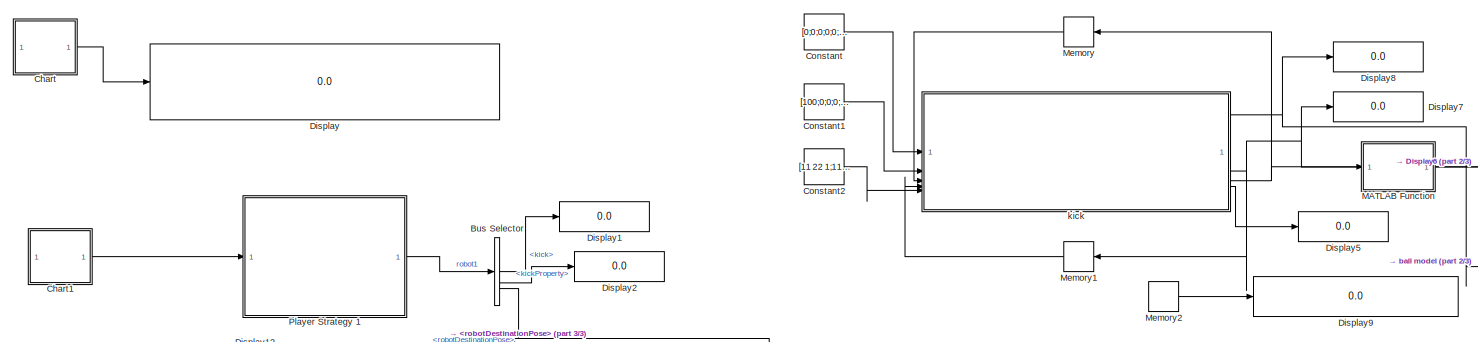
[diagram: root canvas - part 1/3, top center region]
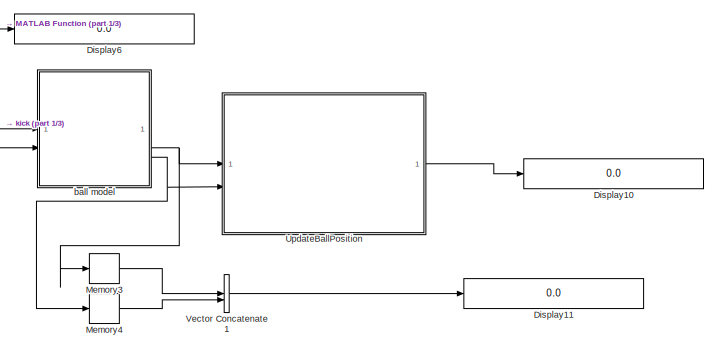
[diagram: root canvas - part 2/3, middle right region]
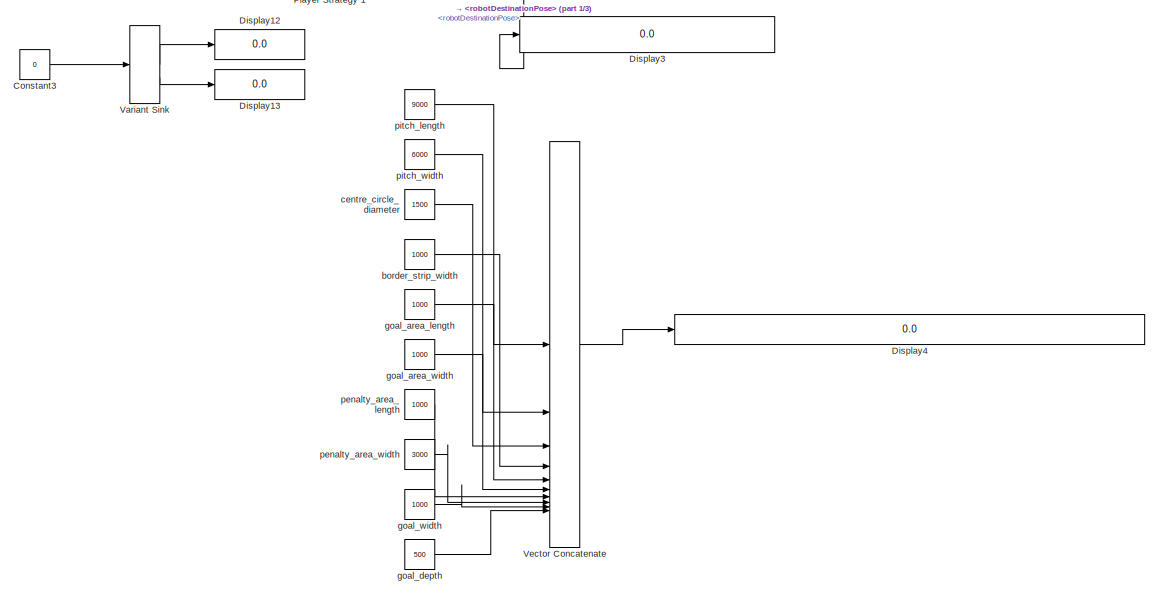
[diagram: root canvas - part 3/3, bottom left region]
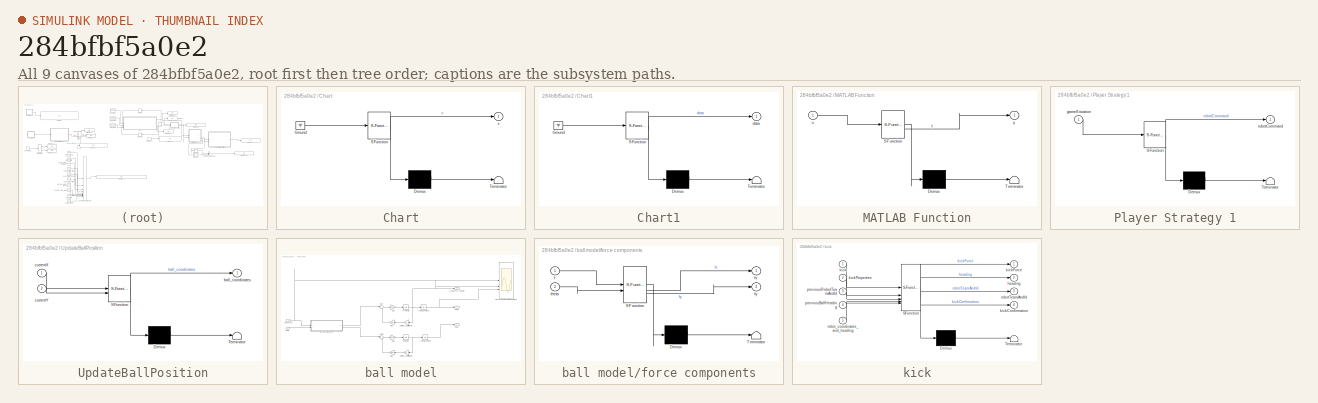
[diagram: thumbnail index - all 9 canvases of the model, root first then tree order]
MODEL slx_284bfbf5a0e2
KIND model
CONFIG AbsTol = auto
CONFIG EnableMultiTasking = off
CONFIG FixedStep = auto
CONFIG MaxStep = auto
CONFIG MinStep = auto
CONFIG RelTol = 1e-3
CONFIG SampleTimeConstraint = Unconstrained
CONFIG SolverName = VariableStepAuto
CONFIG StartTime = 0.0
CONFIG StopTime = 10.0
BLOCK [BusSelector] Bus Selector
  OutputSignals = kick,kickProperty,robotDestinationPose
BLOCK [SubSystem] Chart
  ErrorFcn = Stateflow.Translate.translate
  PermitHierarchicalResolution = ExplicitOnly
  SFBlockType = Chart
  TreatAsAtomicUnit = on
BLOCK [Demux] Chart/ Demux 
  Outputs = 1
BLOCK [Ground] Chart/ Ground 
BLOCK [S-Function] Chart/ SFunction 
  EnableBusSupport = on
  FunctionName = sf_sfun
  PortCounts = [1 2]
  SFcnIsStateOwnerBlock = off
  SFunctionDeploymentMode = off
  Tag = Stateflow S-Function 3
BLOCK [Terminator] Chart/ Terminator 
BLOCK [Outport] Chart/x
BLOCK [SubSystem] Chart1
  ErrorFcn = Stateflow.Translate.translate
  PermitHierarchicalResolution = ExplicitOnly
  SFBlockType = Chart
  TreatAsAtomicUnit = on
BLOCK [Demux] Chart1/ Demux 
  Outputs = 1
BLOCK [Ground] Chart1/ Ground 
BLOCK [S-Function] Chart1/ SFunction 
  EnableBusSupport = on
  FunctionName = sf_sfun
  PortCounts = [1 2]
  SFcnIsStateOwnerBlock = off
  SFunctionDeploymentMode = off
  Tag = Stateflow S-Function 1
BLOCK [Terminator] Chart1/ Terminator 
BLOCK [Outport] Chart1/data
BLOCK [Constant] Constant
  Value = [0;0;0;0;0;0;0;0]
BLOCK [Constant] Constant1
  Value = [100;0;0;0;0;0;0;0]
BLOCK [Constant] Constant2
  Value = [11 22 1;11 33 2;11 44 3;11 55 4;11 66 5;11 77 6;11 88 7;11 99 8]
BLOCK [Constant] Constant3
  Value = 0
BLOCK [Display] Display
  Decimation = 1
BLOCK [Display] Display1
  Decimation = 1
BLOCK [Display] Display10
  Decimation = 1
BLOCK [Display] Display11
  Decimation = 1
BLOCK [Display] Display12
  Decimation = 1
BLOCK [Display] Display13
  Decimation = 1
BLOCK [Display] Display2
  Decimation = 1
BLOCK [Display] Display3
  Decimation = 1
BLOCK [Display] Display4
  Decimation = 1
BLOCK [Display] Display5
  Decimation = 1
BLOCK [Display] Display6
  Decimation = 1
BLOCK [Display] Display7
  Decimation = 1
BLOCK [Display] Display8
  Decimation = 1
BLOCK [Display] Display9
  Decimation = 1
BLOCK [SubSystem] MATLAB Function
  ErrorFcn = Stateflow.Translate.translate
  LibrarySourceBlock = simulink/User-Defined\nFunctions/MATLAB Function
  PermitHierarchicalResolution = ExplicitOnly
  SFBlockType = MATLAB Function
  TreatAsAtomicUnit = on
BLOCK [Demux] MATLAB Function/ Demux 
  Outputs = 1
BLOCK [S-Function] MATLAB Function/ SFunction 
  EnableBusSupport = on
  FunctionName = sf_sfun
  PortCounts = [1 2]
  SFcnIsStateOwnerBlock = off
  SFunctionDeploymentMode = off
  Tag = Stateflow S-Function 2
BLOCK [Terminator] MATLAB Function/ Terminator 
BLOCK [Inport] MATLAB Function/u
BLOCK [Outport] MATLAB Function/y
BLOCK [Memory] Memory
  InheritSampleTime = on
  InitialCondition = 1
  LinearizeAsDelay = on
  NameLocation = top
BLOCK [Memory] Memory1
  InheritSampleTime = on
  LinearizeAsDelay = on
  NameLocation = top
BLOCK [Memory] Memory2
  InheritSampleTime = on
  InitialCondition = [1 1]
  LinearizeAsDelay = on
BLOCK [Memory] Memory3
BLOCK [Memory] Memory4
BLOCK [SubSystem] Player Strategy 1
  ErrorFcn = Stateflow.Translate.translate
  PermitHierarchicalResolution = ExplicitOnly
  SFBlockType = Chart
  TreatAsAtomicUnit = on
BLOCK [Demux] Player Strategy 1/ Demux 
  Outputs = 1
BLOCK [S-Function] Player Strategy 1/ SFunction 
  EnableBusSupport = on
  FunctionName = sf_sfun
  PortCounts = [1 2]
  SFcnIsStateOwnerBlock = off
  SFunctionDeploymentMode = off
  Tag = Stateflow S-Function 4
BLOCK [Terminator] Player Strategy 1/ Terminator 
BLOCK [Inport] Player Strategy 1/gameSituation
BLOCK [Outport] Player Strategy 1/robotCommand
BLOCK [SubSystem] UpdateBallPosition
  ErrorFcn = Stateflow.Translate.translate
  LibrarySourceBlock = simulink/User-Defined\nFunctions/MATLAB Function
  PermitHierarchicalResolution = ExplicitOnly
  SFBlockType = MATLAB Function
  TreatAsAtomicUnit = on
BLOCK [Demux] UpdateBallPosition/ Demux 
  Outputs = 1
BLOCK [S-Function] UpdateBallPosition/ SFunction 
  EnableBusSupport = on
  FunctionName = sf_sfun
  PortCounts = [2 2]
  SFcnIsStateOwnerBlock = off
  SFunctionDeploymentMode = off
  Tag = Stateflow S-Function 18
BLOCK [Terminator] UpdateBallPosition/ Terminator 
BLOCK [Outport] UpdateBallPosition/ball_coordinates
BLOCK [Inport] UpdateBallPosition/currentX
BLOCK [Inport] UpdateBallPosition/currentY
  Port = 2
BLOCK [VariantSink] Variant Sink
BLOCK [Concatenate] Vector Concatenate
  Mode = Multidimensional array
  NumInputs = 10
BLOCK [Concatenate] Vector Concatenate1
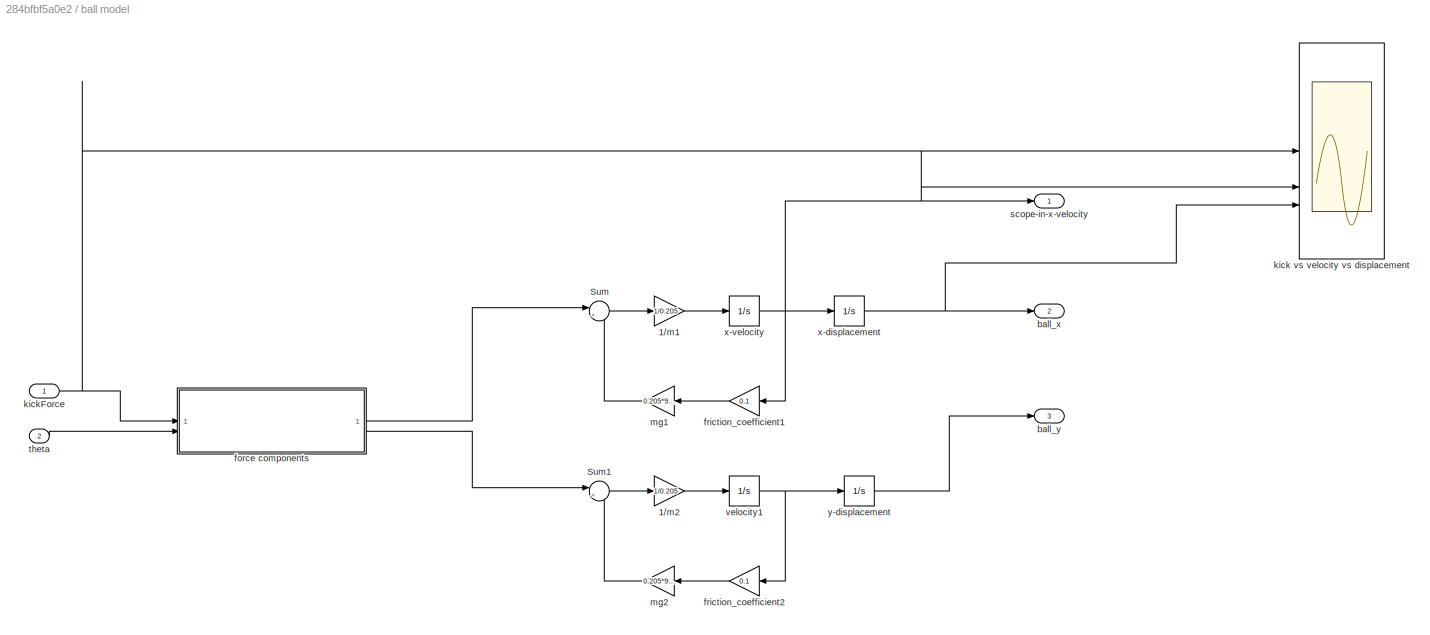
BLOCK [SubSystem] ball model
BLOCK [Gain] ball model/1//m1
  Gain = 1/0.205
BLOCK [Gain] ball model/1//m2
  Gain = 1/0.205
BLOCK [Sum] ball model/Sum
  Inputs = |+-
BLOCK [Sum] ball model/Sum1
  Inputs = |+-
BLOCK [Outport] ball model/ball_x
  Port = 2
BLOCK [Outport] ball model/ball_y
  Port = 3
BLOCK [SubSystem] ball model/force components
  ErrorFcn = Stateflow.Translate.translate
  LibrarySourceBlock = simulink/User-Defined\nFunctions/MATLAB Function
  PermitHierarchicalResolution = ExplicitOnly
  SFBlockType = MATLAB Function
  TreatAsAtomicUnit = on
BLOCK [Demux] ball model/force components/ Demux 
  Outputs = 1
BLOCK [S-Function] ball model/force components/ SFunction 
  EnableBusSupport = on
  FunctionName = sf_sfun
  PortCounts = [2 3]
  SFcnIsStateOwnerBlock = off
  SFunctionDeploymentMode = off
  Tag = Stateflow S-Function 21
BLOCK [Terminator] ball model/force components/ Terminator 
BLOCK [Inport] ball model/force components/f
BLOCK [Outport] ball model/force components/fx
BLOCK [Outport] ball model/force components/fy
  Port = 2
BLOCK [Inport] ball model/force components/theta
  Port = 2
BLOCK [Gain] ball model/friction_coefficient1
  Gain = 0.1
  NameLocation = top
BLOCK [Gain] ball model/friction_coefficient2
  Gain = 0.1
  NameLocation = top
BLOCK [Scope] ball model/kick vs velocity vs displacement
  Floating = off
  NumInputPorts = 3
  ScopeSpecificationString = Simulink.scopes.TimeScopeBlockCfg('CurrentConfiguration', extmgr.ConfigurationSet(extmgr.Configuration('Core','General UI',true),extmgr.Configuration('Core','Source UI',true),extmgr.Configuration('Sources','WiredSimulink',true),extmgr.Configuration('Visuals','Time Domain',true,'SerializedDisplays',{struct('MinYLimReal','-1.25','MaxYLimReal','11.25','YLabelReal','','MinYLimMag','0.00000','MaxYLimMa...<+1427ch>
BLOCK [Inport] ball model/kickForce
BLOCK [Gain] ball model/mg1
  Gain = 0.205*9.8
  NameLocation = top
BLOCK [Gain] ball model/mg2
  Gain = 0.205*9.8
  NameLocation = top
BLOCK [Outport] ball model/scope-in-x-velocity
BLOCK [Inport] ball model/theta
  Port = 2
BLOCK [Integrator] ball model/velocity1
BLOCK [Integrator] ball model/x-displacement
BLOCK [Integrator] ball model/x-velocity
BLOCK [Integrator] ball model/y-displacement
BLOCK [Constant] border_strip_width
  Value = 1000
BLOCK [Constant] centre_circle_diameter
  Value = 1500
BLOCK [Constant] goal_area_length
  Value = 1000
BLOCK [Constant] goal_area_width
  Value = 1000
BLOCK [Constant] goal_depth
  Value = 500
BLOCK [Constant] goal_width
  Value = 1000
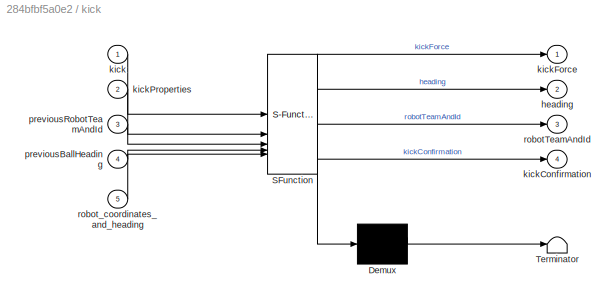
BLOCK [SubSystem] kick
  ErrorFcn = Stateflow.Translate.translate
  LibrarySourceBlock = simulink/User-Defined\nFunctions/MATLAB Function
  PermitHierarchicalResolution = ExplicitOnly
  SFBlockType = MATLAB Function
  TreatAsAtomicUnit = on
BLOCK [Demux] kick/ Demux 
  Outputs = 1
BLOCK [S-Function] kick/ SFunction 
  EnableBusSupport = on
  FunctionName = sf_sfun
  PortCounts = [5 5]
  SFcnIsStateOwnerBlock = off
  SFunctionDeploymentMode = off
  Tag = Stateflow S-Function 37
BLOCK [Terminator] kick/ Terminator 
BLOCK [Outport] kick/heading
  Port = 2
BLOCK [Inport] kick/kick
BLOCK [Outport] kick/kickConfirmation
  Port = 4
BLOCK [Outport] kick/kickForce
BLOCK [Inport] kick/kickProperties
  Port = 2
BLOCK [Inport] kick/previousBallHeading
  Port = 4
BLOCK [Inport] kick/previousRobotTeamAndId
  Port = 3
BLOCK [Outport] kick/robotTeamAndId
  Port = 3
BLOCK [Inport] kick/robot_coordinates_and_heading
  Port = 5
BLOCK [Constant] penalty_area_length
  Value = 1000
BLOCK [Constant] penalty_area_width
  Value = 3000
BLOCK [Constant] pitch_length
  Value = 9000
BLOCK [Constant] pitch_width
  Value = 6000
LINE Bus Selector:1 -> Display1:1
LINE Bus Selector:2 -> Display2:1
LINE Bus Selector:3 -> Display3:1
LINE Chart1:1 -> Player Strategy 1:1
LINE Chart:1 -> Display:1
LINE Constant1:1 -> kick:2
LINE Constant2:1 -> kick:5
LINE Constant3:1 -> Variant Sink:1
LINE Constant:1 -> kick:1
LINE MATLAB Function:1 -> Display6:1
LINE Memory1:1 -> kick:4
LINE Memory2:1 -> Display9:1
LINE Memory3:1 -> Vector Concatenate1:1
LINE Memory4:1 -> Vector Concatenate1:2
LINE Memory:1 -> kick:3
LINE Player Strategy 1:1 -> Bus Selector:1
LINE UpdateBallPosition:1 -> Display10:1
LINE Variant Sink:1 -> Display12:1
LINE Variant Sink:2 -> Display13:1
LINE Vector Concatenate1:1 -> Display11:1
LINE Vector Concatenate:1 -> Display4:1
LINE ball model/1//m1:1 -> ball model/x-velocity:1
LINE ball model/1//m2:1 -> ball model/velocity1:1
LINE ball model/Sum1:1 -> ball model/1//m2:1
LINE ball model/Sum:1 -> ball model/1//m1:1
LINE ball model/force components:1 -> ball model/Sum:1
LINE ball model/force components:2 -> ball model/Sum1:1
LINE ball model/friction_coefficient1:1 -> ball model/mg1:1
LINE ball model/friction_coefficient2:1 -> ball model/mg2:1
NET ball model/kickForce:1 -> ball model/force components:1, ball model/kick vs velocity vs displacement:1
LINE ball model/mg1:1 -> ball model/Sum:2
LINE ball model/mg2:1 -> ball model/Sum1:2
LINE ball model/theta:1 -> ball model/force components:2
NET ball model/velocity1:1 -> ball model/friction_coefficient2:1, ball model/y-displacement:1
NET ball model/x-displacement:1 -> ball model/ball_x:1, ball model/kick vs velocity vs displacement:3
NET ball model/x-velocity:1 -> ball model/friction_coefficient1:1, ball model/kick vs velocity vs displacement:2, ball model/scope-in-x-velocity:1, ball model/x-displacement:1
LINE ball model/y-displacement:1 -> ball model/ball_y:1
NET ball model:2 -> Memory3:1, UpdateBallPosition:1
NET ball model:3 -> Memory4:1, UpdateBallPosition:2
LINE border_strip_width:1 -> Vector Concatenate:4
LINE centre_circle_diameter:1 -> Vector Concatenate:3
LINE goal_area_length:1 -> Vector Concatenate:5
LINE goal_area_width:1 -> Vector Concatenate:6
LINE goal_depth:1 -> Vector Concatenate:10
LINE goal_width:1 -> Vector Concatenate:9
NET kick:1 -> Display8:1, ball model:1
NET kick:2 -> Display7:1, Memory1:1, ball model:2
NET kick:3 -> MATLAB Function:1, Memory:1
LINE kick:4 -> Display5:1
LINE penalty_area_length:1 -> Vector Concatenate:7
LINE penalty_area_width:1 -> Vector Concatenate:8
LINE pitch_length:1 -> Vector Concatenate:1
LINE pitch_width:1 -> Vector Concatenate:2
note: NET lines group one-source signal fan-out (src -> all destinations, sorted); 1:1 wires keep LINE
CHART Chart1 states=1 transitions=1
  STATE_LABEL 'test\nen:\ndata.kickConfirmation = false;\ndata.ballGameState = 1;\ndata.ballCurrentPose = [0 0];\ndata.ballLastCommandBy =[1 2];\ndata.robotCurrentPose = [-1000 0 0; 2000 1000 1000;-1000 1000 0;-4000 1000 0 ];\ndata.robotCurrentVelocity = [1; 1; 2; 0];\ndu:\nex:'
CHART MATLAB Function states=1 transitions=1
  STATE_LABEL 'eML_blk_kernel()'
  STATE_LABEL 'SCRIPT:\nfunction y = fcn(u)\nif u > 4\n    y = [2,u-4];\nelse\n    y = [1,u];\nend\nend\n\n\n'
CHART Chart states=2 transitions=1
  STATE_LABEL 'dist = distTo(robotPosition,goalPosition)'
  STATE_LABEL 'SCRIPT:\nfunction dist = distTo(robotPosition,goalPosition)\n    dist = norm(robotPosition - goalPosition);\nend\n'
  STATE_LABEL 'a\nen:\na = [1 2 3; 4 5 6; 7 8 9; 10 11 12];\nb = [4 5 6; 7 8 9; 10 11 12; 13 14 15];\nx= [0 0 0 0 ];\nfor i=1:1:4\n    x(i)=distTo(a(i,1:2),b(i,1:2));\nend\ndu:'
CHART Player Strategy 1 states=14 transitions=31
  STATE_LABEL 'dist = distTo(robotPosition,goalPosition)'
  STATE_LABEL 'SCRIPT:\nfunction dist = distTo(robotPosition,goalPosition)\n    dist = norm(robotPosition - goalPosition);\nend\n'
  STATE_LABEL 'ROBOT 1\n(Strategy for robot 1~3)'
  STATE_LABEL 'InitialState\nen,du:\nif gameSituation.kickConfirmation == true\n    robotCommand.kick = false;\nend\nid = 1; % Team1(Home) Robot 1\nshootDistThres = 2500;\nkickableAreaRadius = 20;\nhomeGoalPose = [-5000, 0];\nawayGoalPose = [5000, 0];\nhomeAttackPositions = [[2500, 0, 0]; [1500, 2000, 0]; [1500, -2000, 0]; [-2000, 0, 0]];\nhomeDefendPositions = [[-1000, 0, 0]; [-3000, 2000, 0]; [-3000, -2000, 0]; [-3500, 0...<+7ch>'
  STATE_LABEL 'Attack\nen,du:\n%%calculate the distance to the goal\nteamDistToGoal = [0 0 0 0];\nfor idx=1:1:4\n    teamDistToGoal(idx) = distTo(gameSituation.robotCurrentPose(idx,1:2), awayGoalPose);\nend\ndistToGoal1 = distTo(gameSituation.robotCurrentPose(id,1:2), awayGoalPose);\n%calculate the distance to the ball\nteamDistToBall = [0 0 0 0];\nfor idx=1:1:4\n    teamDistToBall(idx) = distTo(gameSituation.robotCurrentP...<+171ch>'
  STATE_LABEL 'Defend\nen,du:\n%%calculate the distance to the home goal\nteamDistToOwnGoal = [0 0 0 0]\nfor idx=1:1:4\n    teamDistToOwnGoal(idx) = distTo(gameSituation.robotCurrentPose(idx,1:2), homeGoalPose);\nend\ndistToOwnGoal = distTo(gameSituation.robotCurrentPose(id,1:2), homeGoalPose);\n'
  STATE_LABEL 'Position\nen,du:\nplayerAttackPosition = homeAttackPositions(id, :);\nkickPower = 1;\nkickState = false;\ndesiredPosition = playerAttackPosition;\nisdone = true;'
  STATE_LABEL 'Shoot\nen,du:\nangleBallGoal = atan2d(awayGoalPose(2) - gameSituation.ballCurrentPose(2), ...\n    awayGoalPose(1) - gameSituation.ballCurrentPose(1));\nkickPower = 100;\nkickState = true;\nkickDirection = 180 + angleBallGoal;\ndesiredPosition = [gameSituation.ballCurrentPose(1) + cosd(angleBallGoal) * kickableAreaRadius, ...\n    gameSituation.ballCurrentPose(2) + sind(angleBallGoal) * kickableAreaRadius...<+31ch>'
  STATE_LABEL 'Intercept\nen,du:\nangleBallGoal = atan2d(awayGoalPose(2) - gameSituation.ballCurrentPose(2), ...\n    awayGoalPose(1) - gameSituation.ballCurrentPose(1));\nkickPower = 50;\nkickState = true;\nkickDirection = 180 + angleBallGoal;\ndesiredPosition = [gameSituation.ballCurrentPose(1) + cosd(angleBallGoal) * kickableAreaRadius, ...\n    gameSituation.ballCurrentPose(2) + sind(angleBallGoal) * kickableAreaRad...<+35ch>'
  STATE_LABEL 'Formation\nen,du:\nplayerDefendPosition = homeDefendPositions(id, :);\nkickPower = 1;\nkickState = false;\ndesiredPosition = playerDefendPosition;\nisdone = true;'
  STATE_LABEL 'Pass\nen,du:\n[minval,minidx] = min(teamDistToGoal)\nangleBallPlayer = atan2d(gameSituation.robotCurrentPose(minidx, 2) - gameSituation.ballCurrentPose(2), ...\n    gameSituation.robotCurrentPose(minidx, 1) - gameSituation.ballCurrentPose(1));\nkickPower = 66;\nkickState = true;\nkickDirection = 180 + angleBallPlayer;\ndesiredPosition = [gameSituation.ballCurrentPose(1) + cosd(angleBallPlayer) * kickableA...<+128ch>'
  STATE_LABEL 'Dribble\nen,du:\nangleBallGoal = atan2d(awayGoalPose(2) - gameSituation.ballCurrentPose(2), ...\n    awayGoalPose(1) - gameSituation.ballCurrentPose(1));\nkickPower = 33;\n%%should be designed as the kickPower = kickPowerCofficent * 100\n%%kickPowerCofficieant should also be calculated by distance\nkickState = true;\nkickDirection = 180 + angleBallGoal;\ndesiredPosition = [gameSituation.ballCurrentPose(1) ...<+159ch>'
  STATE_LABEL 'Kick'
  STATE_LABEL 'MoveTo1\nen,du:\nisdone = false;\nrobotCommand.robotDestinationPose = desiredPosition;\n'
  STATE_LABEL 'KickTo\nen,du:\nrobotCommand.kick = kickState;\nrobotCommand.kickProperty = kickPower;\n'
  STATE_LABEL '[isdone]'
  STATE_LABEL '[isdone]'
  STATE_LABEL '[isdone]'
  STATE_LABEL '[isdone]'
  STATE_LABEL '[isdone]'
  STATE_LABEL '[isdone]'
  STATE_LABEL '[gameSituation.robotCurrentPose == robotCommand.robotDestinationPose]'
  STATE_LABEL '[after(1,sec)]'
  STATE_LABEL 'MoveTo1\nen,du:\nisdone = false;\nrobotCommand.robotDestinationPose = desiredPosition;\n'
  STATE_LABEL 'KickTo\nen,du:\nrobotCommand.kick = kickState;\nrobotCommand.kickProperty = kickPower;\n'
CHART UpdateBallPosition states=1 transitions=1
  STATE_LABEL 'eML_blk_kernel()'
  STATE_LABEL 'SCRIPT:\nfunction ball_coordinates  = UpdateBallPosition(currentX, currentY)\n\n \n    % put heading in vector\n    currentPosition = [currentX, currentY];\n    \n   \n    % output the vector\n    ball_coordinates = currentPosition;\nend\n'
CHART ball model/force components states=1 transitions=1
  STATE_LABEL 'eML_blk_kernel()'
  STATE_LABEL 'SCRIPT:\nfunction [fx,fy] = getForceComponents(f, theta)\n    \n    fx = f*cos((theta*pi)/180);\n    fy = f*sin((theta*pi)/180);\n\nend\n'
CHART kick states=1 transitions=1
  STATE_LABEL 'eML_blk_kernel()'
  STATE_LABEL 'SCRIPT:\nfunction [kickForce, heading, robotTeamAndId, kickConfirmation] = fcn(kick, kickProperties, previousRobotTeamAndId, previousBallHeading, robot_coordinates_and_heading)\n\n% kick id 8x1 matrix\n% has boolean values of whether a robot kicks or not\n\nif all(kick(:) == 0)\n    kickForce = 0;\n    robotTeamAndId = previousRobotTeamAndId;\n    kickConfirmation = false;\n    heading = previousBallHeading...<+294ch>'
CHART  states=0 transitions=0
CHART  states=0 transitions=0
CHART  states=0 transitions=0
CHART  states=0 transitions=0
CHART  states=0 transitions=0
CHART  states=0 transitions=0
CHART  states=0 transitions=0
